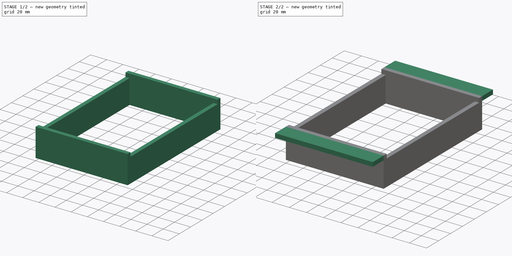
[diagram: build sequence overview — one tinted view per stage of 2, left to right]
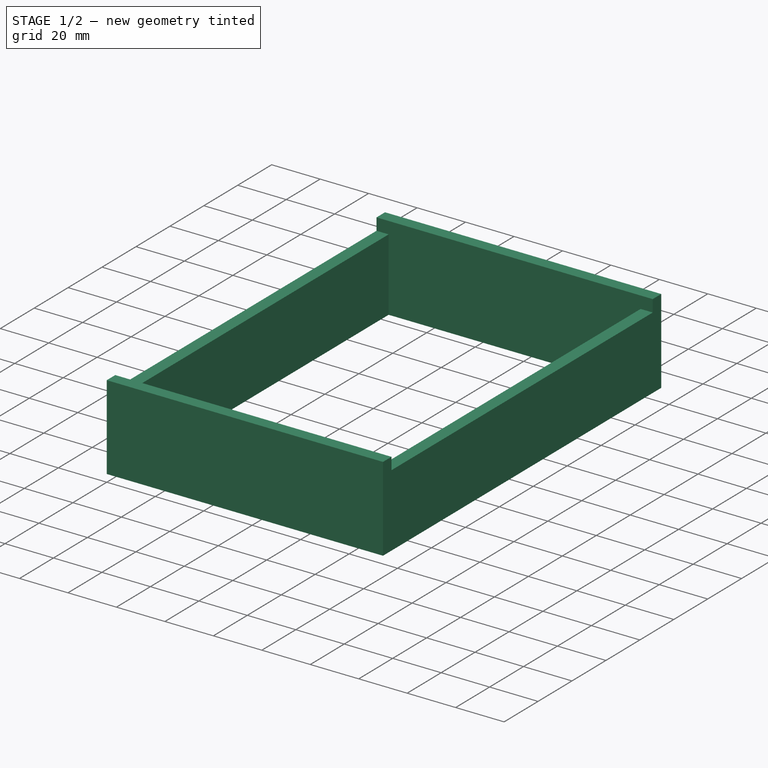
[diagram: stage 1 of 2 — iso view after this stage's code; geometry added in this stage tinted green]
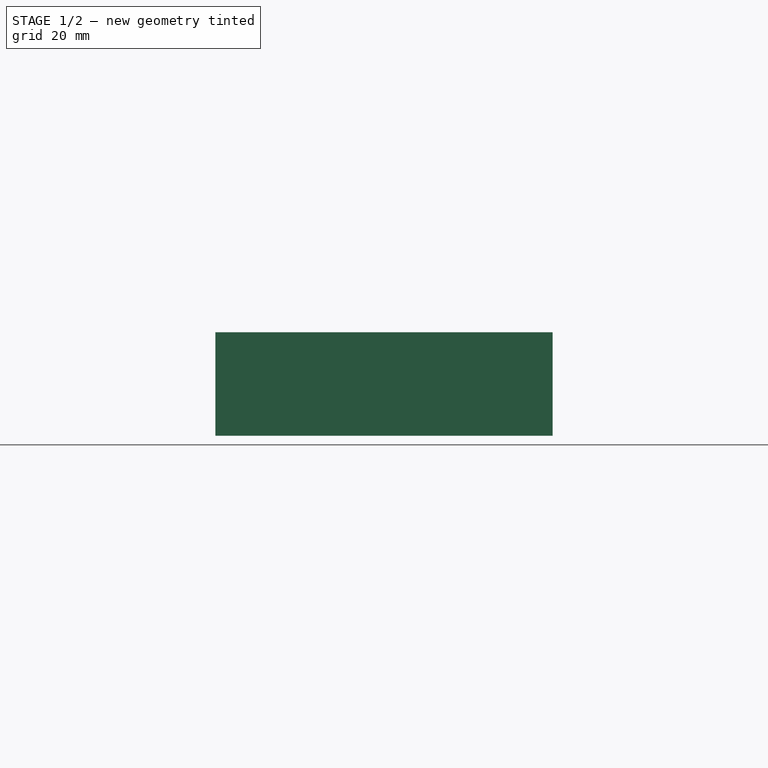
[diagram: stage 1 of 2 — front view after this stage's code; geometry added in this stage tinted green]
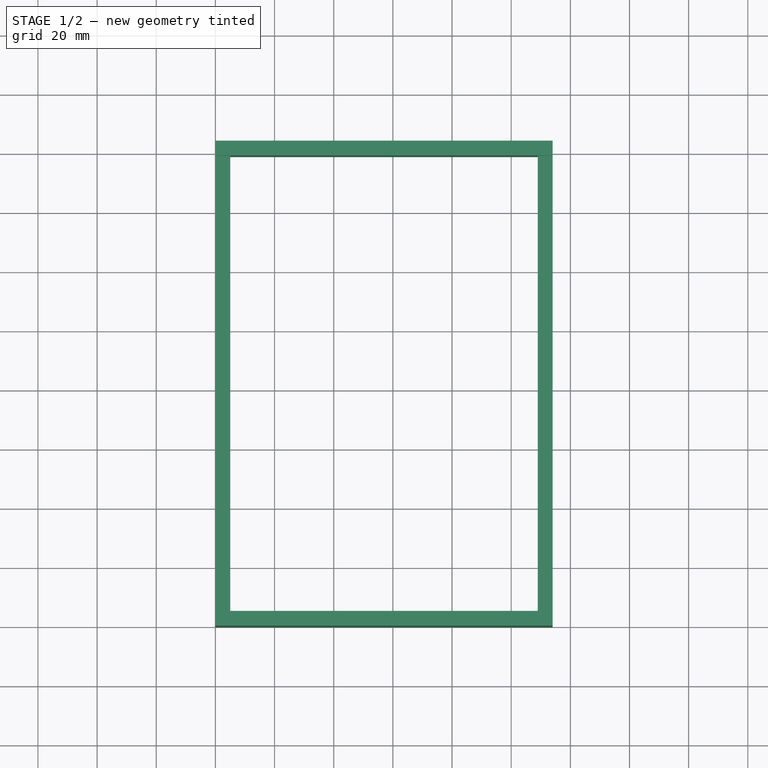
[diagram: stage 1 of 2 — top view after this stage's code; geometry added in this stage tinted green]
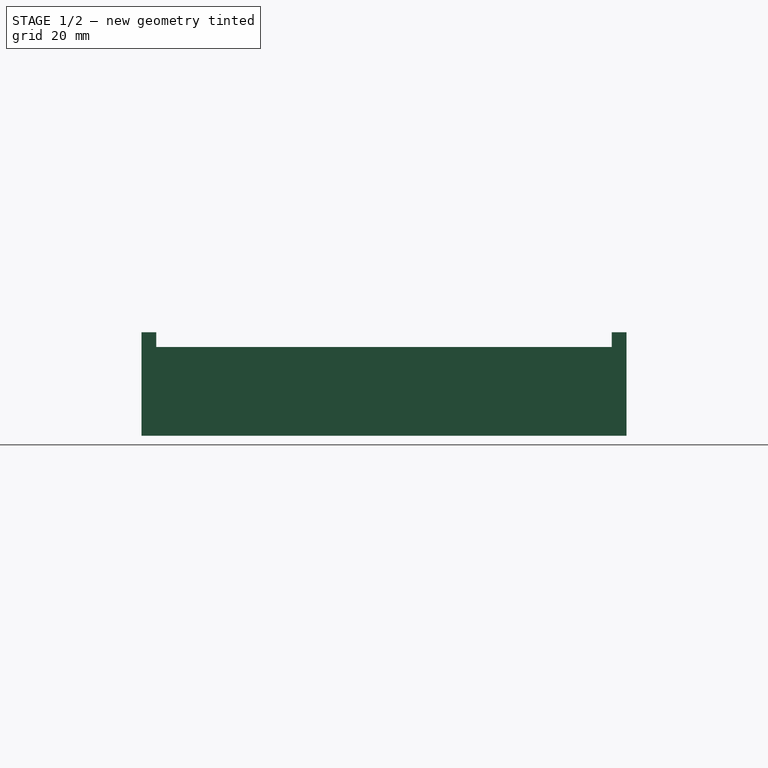
[diagram: stage 1 of 2 — right view after this stage's code; geometry added in this stage tinted green]
FCSTD DOCUMENT  (FreeCAD 0.16R5231 (Git))
Label: AntiBulge_150x100
License: All rights reserved
LicenseURL: http://en.wikipedia.org/wiki/All_rights_reserved
objects: Sketcher::SketchObject×4, PartDesign::Pad×4
note: 12 computed .brp shape members not serialized (recipe doc carries the construction recipe); baked Part::Feature solids carry a one-line shape summary decoded from their .brp

FEATURE [Sketcher::SketchObject] Sketch001
  sketch-geometry (16):
    g0: LineSegment StartX=0 StartY=5 StartZ=0 EndX=114 EndY=5 EndZ=0
    g1: LineSegment StartX=114 StartY=5 StartZ=0 EndX=114 EndY=0 EndZ=0
    g2: LineSegment StartX=114 StartY=0 StartZ=0 EndX=0 EndY=0 EndZ=0
    g3: LineSegment StartX=0 StartY=0 StartZ=0 EndX=0 EndY=5 EndZ=0
    g4: LineSegment StartX=0 StartY=5 StartZ=0 EndX=5 EndY=5 EndZ=0
    g5: LineSegment StartX=5 StartY=5 StartZ=0 EndX=5 EndY=159 EndZ=0
    g6: LineSegment StartX=5 StartY=159 StartZ=0 EndX=0 EndY=159 EndZ=0
    g7: LineSegment StartX=0 StartY=159 StartZ=0 EndX=0 EndY=5 EndZ=0
    g8: LineSegment StartX=114 StartY=5 StartZ=0 EndX=109 EndY=5 EndZ=0
    g9: LineSegment StartX=109 StartY=5 StartZ=0 EndX=109 EndY=159 EndZ=0
    g10: LineSegment StartX=109 StartY=159 StartZ=0 EndX=114 EndY=159 EndZ=0
    g11: LineSegment StartX=114 StartY=159 StartZ=0 EndX=114 EndY=5 EndZ=0
    g12: LineSegment StartX=0 StartY=159 StartZ=0 EndX=114 EndY=159 EndZ=0
    g13: LineSegment StartX=114 StartY=159 StartZ=0 EndX=114 EndY=164 EndZ=0
    g14: LineSegment StartX=114 StartY=164 StartZ=0 EndX=0 EndY=164 EndZ=0
    g15: LineSegment StartX=0 StartY=164 StartZ=0 EndX=0 EndY=159 EndZ=0
  constraints (43):
    c: Coincident(g0,g1)
    c: Coincident(g1,g2)
    c: Coincident(g2,g3)
    c: Coincident(g3,g0)
    c: Horizontal(g0)
    c: Horizontal(g2)
    c: Vertical(g1)
    c: Vertical(g3)
    c: Coincident(g2,g-1)
    c: DistanceY(g3) = 5
    c: Coincident(g4,g5)
    c: Coincident(g5,g6)
    c: Coincident(g6,g7)
    c: Coincident(g7,g4)
    c: Horizontal(g4)
    c: Horizontal(g6)
    c: Vertical(g5)
    c: Vertical(g7)
    c: Coincident(g4,g0)
    c: Coincident(g8,g9)
    c: Coincident(g9,g10)
    c: Coincident(g10,g11)
    c: Coincident(g11,g8)
    c: Horizontal(g8)
    c: Horizontal(g10)
    c: Vertical(g9)
    c: Vertical(g11)
    c: Coincident(g8,g0)
    c: Coincident(g12,g13)
    c: Coincident(g13,g14)
    c: Coincident(g14,g15)
    c: Coincident(g15,g12)
    c: Horizontal(g12)
    c: Horizontal(g14)
    c: Vertical(g13)
    c: Vertical(g15)
    c: Coincident(g12,g6)
    c: Coincident(g10,g12)
    c: Equal(g6,g10)
    c: Equal(g10,g3)
    c: Equal(g3,g15)
    c: DistanceX(g4,g8) = 104
    c: DistanceY(g5,g4) = -154
FEATURE [PartDesign::Pad] Pad001  label="AntiBulge"
  Length = 30
  Length2 = 100
  Sketch = -> Sketch001
  Type = 0
FEATURE [Sketcher::SketchObject] Sketch
  ExternalGeometry = -> [Pad001]
  Placement = pos=(0,0,30) rot=(0,0,1;0rad)
  Support = -> Pad001 [Face14]
  sketch-geometry (8):
    g0: LineSegment StartX=0 StartY=164 StartZ=0 EndX=114 EndY=164 EndZ=0
    g1: LineSegment StartX=114 StartY=164 StartZ=0 EndX=114 EndY=159 EndZ=0
    g2: LineSegment StartX=114 StartY=159 StartZ=0 EndX=0 EndY=159 EndZ=0
    g3: LineSegment StartX=0 StartY=159 StartZ=0 EndX=0 EndY=164 EndZ=0
    g4: LineSegment StartX=0 StartY=0 StartZ=0 EndX=114 EndY=0 EndZ=0
    g5: LineSegment StartX=114 StartY=0 StartZ=0 EndX=114 EndY=5 EndZ=0
    g6: LineSegment StartX=114 StartY=5 StartZ=0 EndX=0 EndY=5 EndZ=0
    g7: LineSegment StartX=0 StartY=5 StartZ=0 EndX=0 EndY=0 EndZ=0
  constraints (20):
    c: Coincident(g0,g1)
    c: Coincident(g1,g2)
    c: Coincident(g2,g3)
    c: Coincident(g3,g0)
    c: Horizontal(g0)
    c: Horizontal(g2)
    c: Vertical(g1)
    c: Vertical(g3)
    c: Coincident(g0,g-3)
    c: Coincident(g1,g-5)
    c: Coincident(g4,g5)
    c: Coincident(g5,g6)
    c: Coincident(g6,g7)
    c: Coincident(g7,g4)
    c: Horizontal(g4)
    c: Horizontal(g6)
    c: Vertical(g5)
    c: Vertical(g7)
    c: Coincident(g4,g-1)
    c: Coincident(g5,g-5)
FEATURE [PartDesign::Pad] Pad
  Length = 5
  Length2 = 100
  Sketch = -> Sketch
  Type = 0
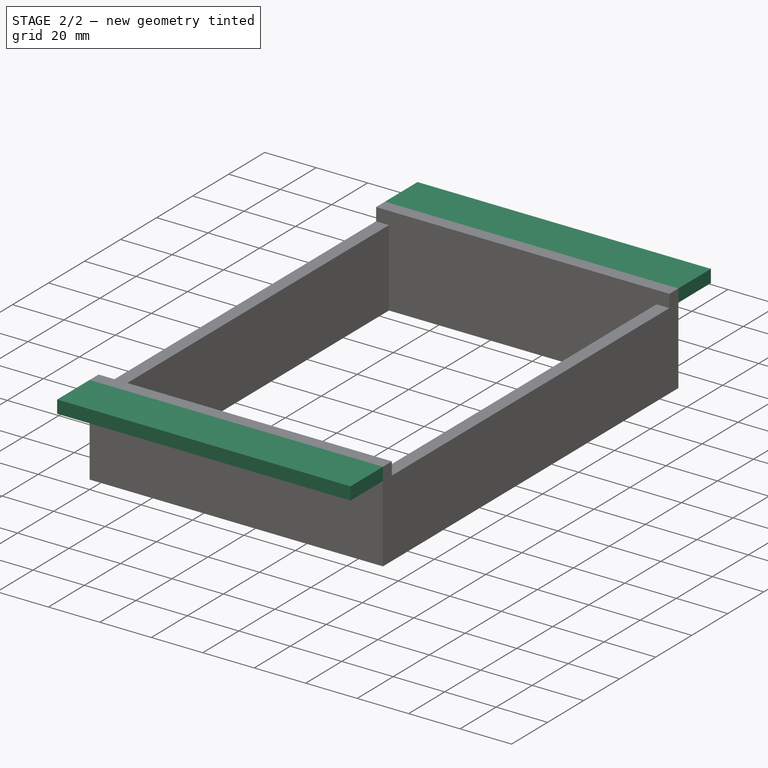
[diagram: stage 2 of 2 — iso view after this stage's code; geometry added in this stage tinted green]
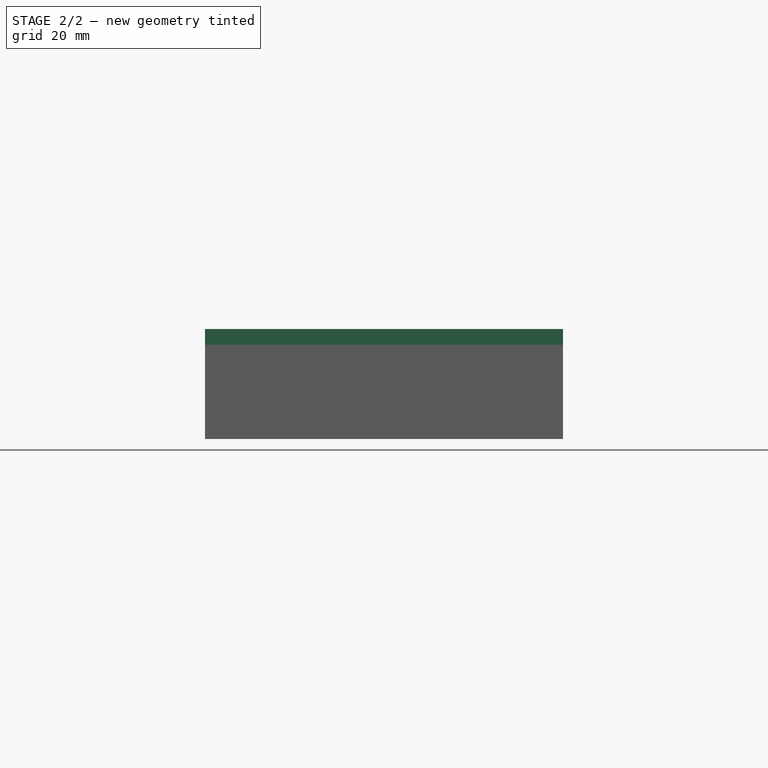
[diagram: stage 2 of 2 — front view after this stage's code; geometry added in this stage tinted green]
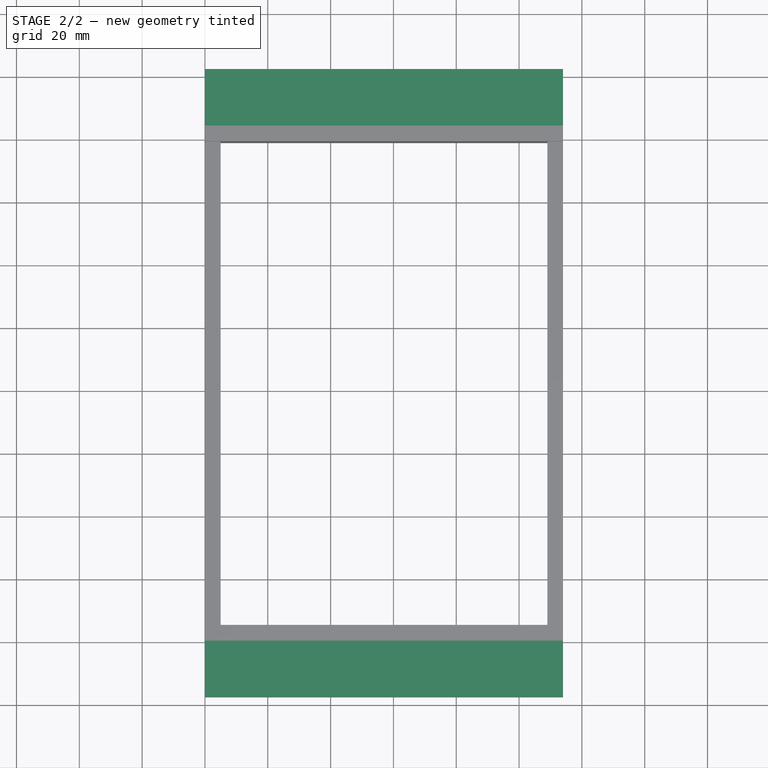
[diagram: stage 2 of 2 — top view after this stage's code; geometry added in this stage tinted green]
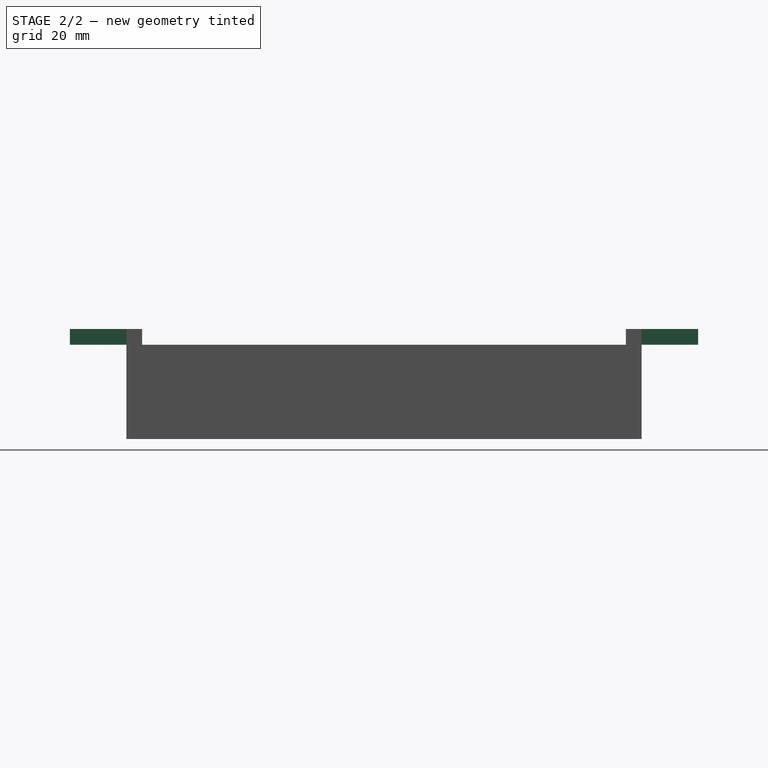
[diagram: stage 2 of 2 — right view after this stage's code; geometry added in this stage tinted green]
FEATURE [Sketcher::SketchObject] Sketch002
  ExternalGeometry = -> [Pad]
  Placement = pos=(0,0,0) rot=(1,0,0;1.5708rad)
  Support = -> Pad [Face24]
  sketch-geometry (4):
    g0: LineSegment StartX=0 StartY=35 StartZ=0 EndX=114 EndY=35 EndZ=0
    g1: LineSegment StartX=114 StartY=35 StartZ=0 EndX=114 EndY=30 EndZ=0
    g2: LineSegment StartX=114 StartY=30 StartZ=0 EndX=0 EndY=30 EndZ=0
    g3: LineSegment StartX=0 StartY=30 StartZ=0 EndX=0 EndY=35 EndZ=0
  constraints (10):
    c: Coincident(g0,g1)
    c: Coincident(g1,g2)
    c: Coincident(g2,g3)
    c: Coincident(g3,g0)
    c: Horizontal(g0)
    c: Horizontal(g2)
    c: Vertical(g1)
    c: Vertical(g3)
    c: Coincident(g0,g-3)
    c: Coincident(g1,g-4)
FEATURE [PartDesign::Pad] Pad002
  Length = 18
  Length2 = 100
  Sketch = -> Sketch002
  Type = 0
FEATURE [Sketcher::SketchObject] Sketch003
  ExternalGeometry = -> [Pad002]
  Placement = pos=(0,164,0) rot=(0,0.707107,0.707107;3.14159rad)
  Support = -> Pad002 [Face25]
  sketch-geometry (4):
    g0: LineSegment StartX=-114 StartY=35 StartZ=0 EndX=0 EndY=35 EndZ=0
    g1: LineSegment StartX=0 StartY=35 StartZ=0 EndX=0 EndY=30 EndZ=0
    g2: LineSegment StartX=0 StartY=30 StartZ=0 EndX=-114 EndY=30 EndZ=0
    g3: LineSegment StartX=-114 StartY=30 StartZ=0 EndX=-114 EndY=35 EndZ=0
  constraints (10):
    c: Coincident(g0,g1)
    c: Coincident(g1,g2)
    c: Coincident(g2,g3)
    c: Coincident(g3,g0)
    c: Horizontal(g0)
    c: Horizontal(g2)
    c: Vertical(g1)
    c: Vertical(g3)
    c: Coincident(g0,g-3)
    c: Coincident(g1,g-4)
FEATURE [PartDesign::Pad] Pad003
  Length = 18
  Length2 = 100
  Sketch = -> Sketch003
  Type = 0
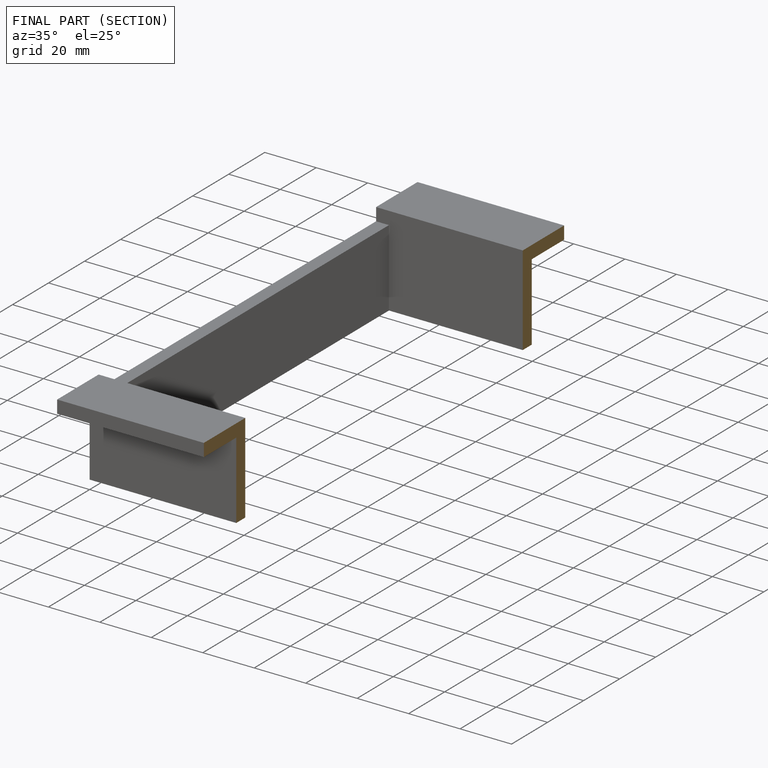
[diagram: finished part — half-section view (interior)]
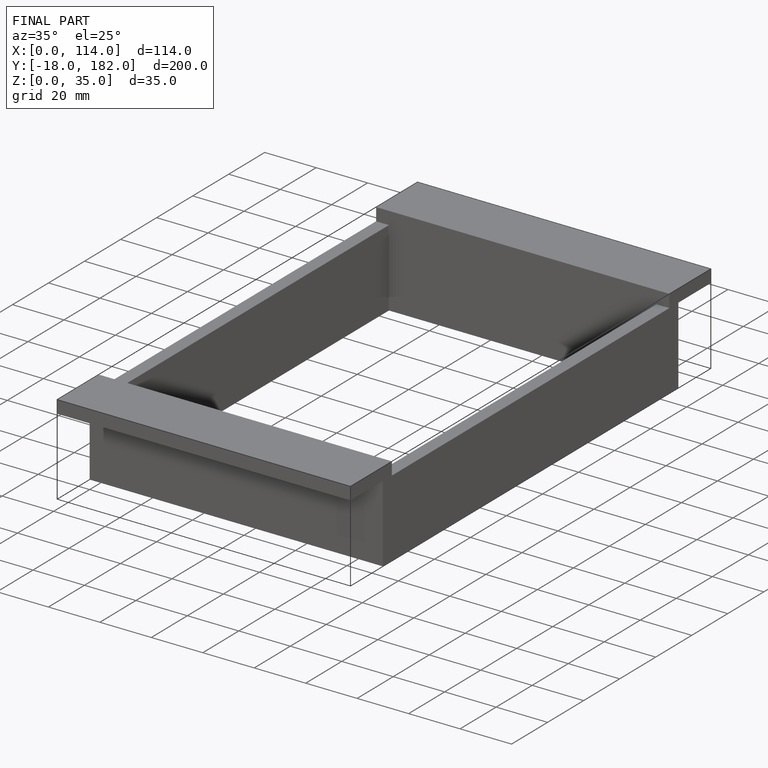
[diagram: finished part — iso view with bounding-box wireframe]
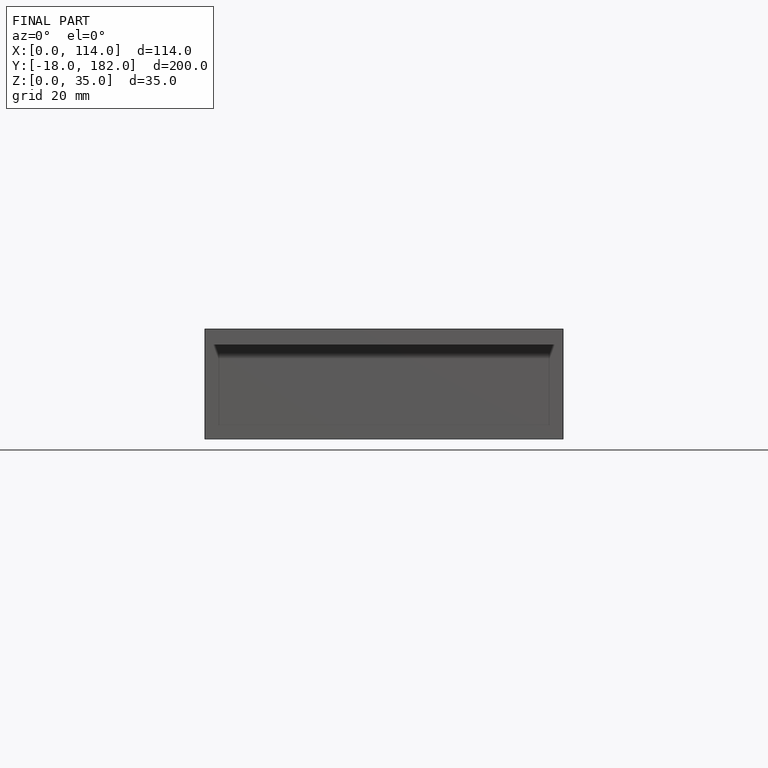
[diagram: finished part — front view with bounding-box wireframe]
